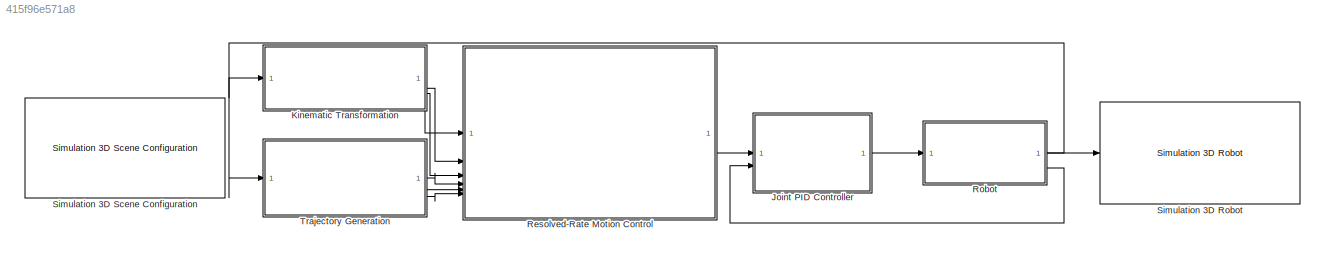
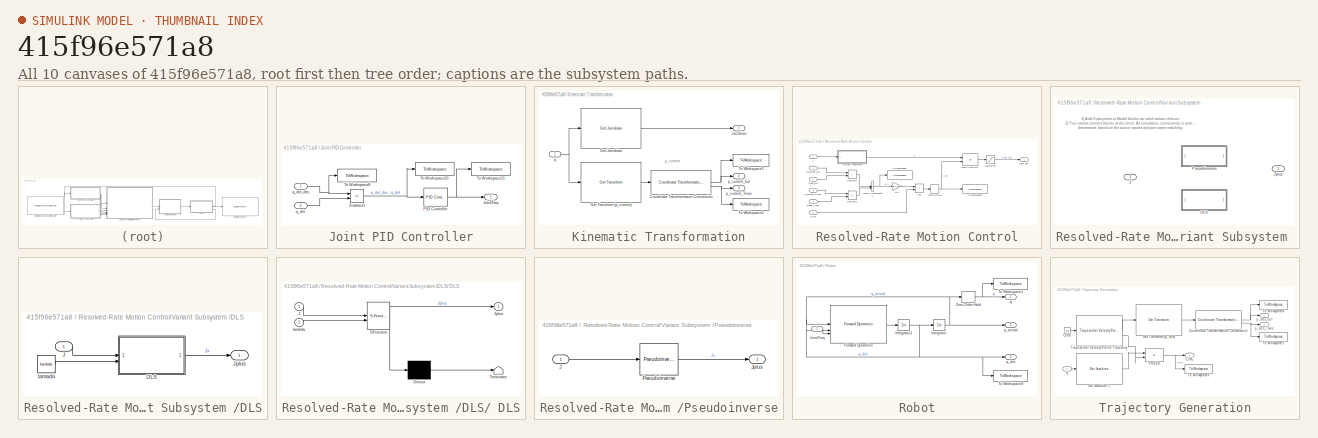
[diagram: thumbnail index - all 10 canvases of the model, root first then tree order]
MODEL slx_415f96e571a8
KIND model
CONFIG AbsTol = auto
CONFIG EnableMultiTasking = off
CONFIG FixedStep = 0.005
CONFIG MaxStep = auto
CONFIG MinStep = auto
CONFIG RelTol = 1e-3
CONFIG SampleTimeConstraint = Unconstrained
CONFIG SolverName = VariableStepAuto
CONFIG StartTime = 0.0
CONFIG StopTime = 10.0
BLOCK [SubSystem] Joint PID Controller
BLOCK [Outport] Joint PID Controller/JointTorq
BLOCK [Reference] Joint PID Controller/PID Controller   REF=slpidlib/PID Controller
  LibrarySourceBlock = simulink/Continuous/PID Controller
  SourceBlock = slpidlib/PID Controller
  SourceType = PID 1dof
BLOCK [Sum] Joint PID Controller/Subtract1
  IconShape = rectangular
  Inputs = +-
BLOCK [ToWorkspace] Joint PID Controller/To Workspace10
  FixptAsFi = on
  MaxDataPoints = inf
  SampleTime = 0.01
  SaveFormat = Structure With Time
  VariableName = sub
BLOCK [ToWorkspace] Joint PID Controller/To Workspace11
  FixptAsFi = on
  MaxDataPoints = inf
  SampleTime = 0.01
  SaveFormat = Structure With Time
  VariableName = torque
BLOCK [ToWorkspace] Joint PID Controller/To Workspace8
  FixptAsFi = on
  MaxDataPoints = inf
  SampleTime = 0.01
  SaveFormat = Structure With Time
  VariableName = q_dot_des
BLOCK [Inport] Joint PID Controller/q_dot
  NameLocation = top
  Port = 2
BLOCK [Inport] Joint PID Controller/q_dot_des
BLOCK [SubSystem] Kinematic Transformation
BLOCK [Reference] Kinematic Transformation/Coordinate Transformation Conversion  REF=robotcorelib/Coordinate Transformation Conversion
  LibrarySourceBlock = robotutilslib/Coordinate Transformation Conversion
  SourceBlock = robotcorelib/Coordinate Transformation Conversion
  SourceType = robotics.slcore.internal.block.CoordinateTransformationConversion
BLOCK [Reference] Kinematic Transformation/Get Jacobian   REF=robotmaniplib/Get Jacobian
  SourceBlock = robotmaniplib/Get Jacobian
  SourceType = Get Jacobian
BLOCK [Reference] Kinematic Transformation/Get Transform (p_current)  REF=robotmaniplib/Get Transform
  SourceBlock = robotmaniplib/Get Transform
  SourceType = Get Transform
BLOCK [Outport] Kinematic Transformation/Jacobian
BLOCK [ToWorkspace] Kinematic Transformation/To Workspace2
  FixptAsFi = on
  MaxDataPoints = inf
  SampleTime = 0.01
  SaveFormat = Structure With Time
  VariableName = p_current_Trvec
BLOCK [ToWorkspace] Kinematic Transformation/To Workspace3
  FixptAsFi = on
  MaxDataPoints = inf
  SampleTime = 0.01
  SaveFormat = Structure With Time
  VariableName = p_current_Eul
BLOCK [Outport] Kinematic Transformation/p_current_Eul
  Port = 2
BLOCK [Outport] Kinematic Transformation/p_current_Trvec
  Port = 3
BLOCK [Inport] Kinematic Transformation/q
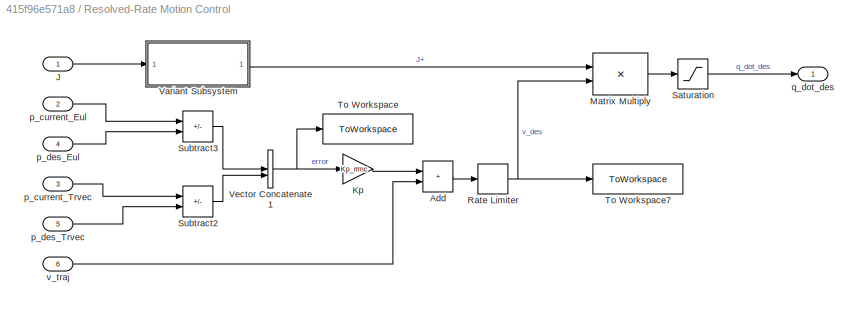
BLOCK [SubSystem] Resolved-Rate Motion Control
BLOCK [Sum] Resolved-Rate Motion Control/Add
  IconShape = rectangular
BLOCK [Inport] Resolved-Rate Motion Control/J
BLOCK [Gain] Resolved-Rate Motion Control/Kp
  Gain = Kp_rrmc
BLOCK [Product] Resolved-Rate Motion Control/Matrix Multiply
  Multiplication = Matrix(*)
BLOCK [RateLimiter] Resolved-Rate Motion Control/Rate Limiter 
  FallingSlewLimit = [-0.3; -0.3; -0.3; -0.8; -0.8; -0.8]
  RisingSlewLimit = [0.3; 0.3; 0.3; 0.8; 0.8; 0.8]
  SampleTimeMode = inherited
BLOCK [Saturate] Resolved-Rate Motion Control/Saturation 
  LowerLimit = -1.6
  UpperLimit = 1.6
BLOCK [Sum] Resolved-Rate Motion Control/Subtract2
  IconShape = rectangular
  Inputs = -+
BLOCK [Sum] Resolved-Rate Motion Control/Subtract3
  IconShape = rectangular
  Inputs = -+
BLOCK [ToWorkspace] Resolved-Rate Motion Control/To Workspace
  FixptAsFi = on
  MaxDataPoints = inf
  SampleTime = 0.01
  SaveFormat = Structure With Time
  VariableName = error
BLOCK [ToWorkspace] Resolved-Rate Motion Control/To Workspace7
  FixptAsFi = on
  MaxDataPoints = inf
  SampleTime = 0.01
  SaveFormat = Structure With Time
  VariableName = v_des
BLOCK [SubSystem] Resolved-Rate Motion Control/Variant Subsystem 
  Variant = on
BLOCK [SubSystem] Resolved-Rate Motion Control/Variant Subsystem /DLS
  VariantControl = select==1
BLOCK [SubSystem] Resolved-Rate Motion Control/Variant Subsystem /DLS/ DLS
  ErrorFcn = Stateflow.Translate.translate
  PermitHierarchicalResolution = ExplicitOnly
  SFBlockType = MATLAB Function
  TreatAsAtomicUnit = on
BLOCK [Demux] Resolved-Rate Motion Control/Variant Subsystem /DLS/ DLS/ Demux 
  Outputs = 1
BLOCK [S-Function] Resolved-Rate Motion Control/Variant Subsystem /DLS/ DLS/ SFunction 
  EnableBusSupport = on
  FunctionName = sf_sfun
  PortCounts = [2 2]
  SFcnIsStateOwnerBlock = off
  SFunctionDeploymentMode = off
  Tag = Stateflow S-Function 1
BLOCK [Terminator] Resolved-Rate Motion Control/Variant Subsystem /DLS/ DLS/ Terminator 
BLOCK [Inport] Resolved-Rate Motion Control/Variant Subsystem /DLS/ DLS/J
BLOCK [Outport] Resolved-Rate Motion Control/Variant Subsystem /DLS/ DLS/Jplus
BLOCK [Inport] Resolved-Rate Motion Control/Variant Subsystem /DLS/ DLS/lambda
  Port = 2
BLOCK [Inport] Resolved-Rate Motion Control/Variant Subsystem /DLS/J
BLOCK [Outport] Resolved-Rate Motion Control/Variant Subsystem /DLS/Jplus
BLOCK [Constant] Resolved-Rate Motion Control/Variant Subsystem /DLS/lamada
  SampleTime = 0.01
  Value = lambda
BLOCK [Inport] Resolved-Rate Motion Control/Variant Subsystem /J
BLOCK [Outport] Resolved-Rate Motion Control/Variant Subsystem /Jplus
BLOCK [SubSystem] Resolved-Rate Motion Control/Variant Subsystem /Pseudoinverse
  VariantControl = select==0
BLOCK [Inport] Resolved-Rate Motion Control/Variant Subsystem /Pseudoinverse/J
BLOCK [Outport] Resolved-Rate Motion Control/Variant Subsystem /Pseudoinverse/Jplus
BLOCK [Reference] Resolved-Rate Motion Control/Variant Subsystem /Pseudoinverse/Pseudoinverse  REF=dspinverses/Pseudoinverse
  SourceBlock = dspinverses/Pseudoinverse
  SourceType = Pseudoinverse
BLOCK [Concatenate] Resolved-Rate Motion Control/Vector Concatenate1
BLOCK [Inport] Resolved-Rate Motion Control/p_current_Eul
  Port = 2
BLOCK [Inport] Resolved-Rate Motion Control/p_current_Trvec
  Port = 3
BLOCK [Inport] Resolved-Rate Motion Control/p_des_Eul
  Port = 4
BLOCK [Inport] Resolved-Rate Motion Control/p_des_Trvec
  Port = 5
BLOCK [Outport] Resolved-Rate Motion Control/q_dot_des
BLOCK [Inport] Resolved-Rate Motion Control/v_traj
  Port = 6
BLOCK [SubSystem] Robot
BLOCK [Reference] Robot/Forward Dynamics   REF=robotmaniplib/Forward Dynamics
  SourceBlock = robotmaniplib/Forward Dynamics
  SourceType = Forward Dynamics
BLOCK [Integrator] Robot/Integrator 
  InitialCondition = [0;0;0;0;0;0]
BLOCK [Integrator] Robot/Integrator1 
  InitialCondition = [0;0;0;0;0;0]
BLOCK [Inport] Robot/JointTorq
BLOCK [ToWorkspace] Robot/To Workspace1
  FixptAsFi = on
  MaxDataPoints = inf
  SampleTime = 0.01
  SaveFormat = Structure With Time
  VariableName = q
BLOCK [ToWorkspace] Robot/To Workspace9
  FixptAsFi = on
  MaxDataPoints = inf
  SampleTime = 0.01
  SaveFormat = Structure With Time
  VariableName = q_dot
BLOCK [ZeroOrderHold] Robot/Zero-Order Hold 
  SampleTime = -1
BLOCK [Outport] Robot/q
BLOCK [Outport] Robot/q_actual
  Port = 2
BLOCK [Outport] Robot/q_dot
  Port = 3
BLOCK [Reference] Simulation 3D Robot   REF=robotsim3dlib/Simulation 3D Robot
  SourceBlock = robotsim3dlib/Simulation 3D Robot
  SourceType = Simulation 3D Robot
BLOCK [Reference] Simulation 3D Scene Configuration   REF=sim3dlib/Simulation 3D Scene Configuration
  LibrarySourceBlock = robotsim3dlib/Simulation 3D Scene Configuration
  Priority = 0
  SourceBlock = sim3dlib/Simulation 3D Scene Configuration
  SourceType = Simulation 3D Scene Configuration
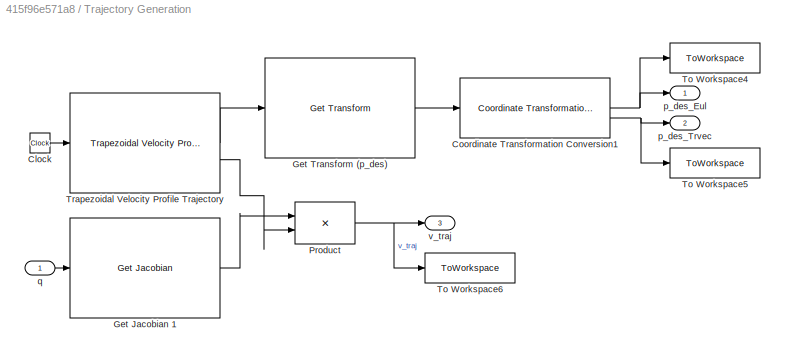
BLOCK [SubSystem] Trajectory Generation
BLOCK [Clock] Trajectory Generation/Clock 
BLOCK [Reference] Trajectory Generation/Coordinate Transformation Conversion1  REF=robotcorelib/Coordinate Transformation Conversion
  LibrarySourceBlock = robotutilslib/Coordinate Transformation Conversion
  SourceBlock = robotcorelib/Coordinate Transformation Conversion
  SourceType = robotics.slcore.internal.block.CoordinateTransformationConversion
BLOCK [Reference] Trajectory Generation/Get Jacobian 1  REF=robotmaniplib/Get Jacobian
  SourceBlock = robotmaniplib/Get Jacobian
  SourceType = Get Jacobian
BLOCK [Reference] Trajectory Generation/Get Transform (p_des)  REF=robotmaniplib/Get Transform
  SourceBlock = robotmaniplib/Get Transform
  SourceType = Get Transform
BLOCK [Product] Trajectory Generation/Product
  Multiplication = Matrix(*)
BLOCK [ToWorkspace] Trajectory Generation/To Workspace4
  FixptAsFi = on
  MaxDataPoints = inf
  SampleTime = 0.01
  SaveFormat = Structure With Time
  VariableName = p_des_Eul
BLOCK [ToWorkspace] Trajectory Generation/To Workspace5
  FixptAsFi = on
  MaxDataPoints = inf
  SampleTime = 0.01
  SaveFormat = Structure With Time
  VariableName = p_des_Trvec
BLOCK [ToWorkspace] Trajectory Generation/To Workspace6
  FixptAsFi = on
  MaxDataPoints = inf
  SampleTime = 0.01
  SaveFormat = Structure With Time
  VariableName = v_traj
BLOCK [Reference] Trajectory Generation/Trapezoidal Velocity Profile Trajectory  REF=robotcorelib/Trapezoidal Velocity Profile Trajectory
  LibrarySourceBlock = robotutilslib/Trapezoidal Velocity Profile Trajectory
  SourceBlock = robotcorelib/Trapezoidal Velocity Profile Trajectory
  SourceType = robotics.slcore.internal.block.TrapVelTrajSys
BLOCK [Outport] Trajectory Generation/p_des_Eul
BLOCK [Outport] Trajectory Generation/p_des_Trvec
  Port = 2
BLOCK [Inport] Trajectory Generation/q
BLOCK [Outport] Trajectory Generation/v_traj
  Port = 3
ANNOTATION Kinematic Transformation: p_current
ANNOTATION Resolved-Rate Motion Control/Variant Subsystem : 1) Add Subsystem or Model blocks as valid variant choices. 2) You cannot connect blocks at this level. At simulation, connectivity is automatically determined, based on the active variant and port name matching.
NET Joint PID Controller/PID Controller :1 -> Joint PID Controller/JointTorq:1, Joint PID Controller/To Workspace11:1
NET Joint PID Controller/Subtract1:1 -> Joint PID Controller/PID Controller :1, Joint PID Controller/To Workspace10:1
LINE Joint PID Controller/q_dot:1 -> Joint PID Controller/Subtract1:2
NET Joint PID Controller/q_dot_des:1 -> Joint PID Controller/Subtract1:1, Joint PID Controller/To Workspace8:1
LINE Joint PID Controller:1 -> Robot:1
NET Kinematic Transformation/Coordinate Transformation Conversion:1 -> Kinematic Transformation/To Workspace3:1, Kinematic Transformation/p_current_Eul:1
NET Kinematic Transformation/Coordinate Transformation Conversion:2 -> Kinematic Transformation/To Workspace2:1, Kinematic Transformation/p_current_Trvec:1
LINE Kinematic Transformation/Get Jacobian :1 -> Kinematic Transformation/Jacobian:1
LINE Kinematic Transformation/Get Transform (p_current):1 -> Kinematic Transformation/Coordinate Transformation Conversion:1
NET Kinematic Transformation/q:1 -> Kinematic Transformation/Get Jacobian :1, Kinematic Transformation/Get Transform (p_current):1
LINE Kinematic Transformation:1 -> Resolved-Rate Motion Control:1
LINE Kinematic Transformation:2 -> Resolved-Rate Motion Control:2
LINE Kinematic Transformation:3 -> Resolved-Rate Motion Control:3
LINE Resolved-Rate Motion Control/Add:1 -> Resolved-Rate Motion Control/Rate Limiter :1
LINE Resolved-Rate Motion Control/J:1 -> Resolved-Rate Motion Control/Variant Subsystem :1
LINE Resolved-Rate Motion Control/Kp:1 -> Resolved-Rate Motion Control/Add:1
LINE Resolved-Rate Motion Control/Matrix Multiply:1 -> Resolved-Rate Motion Control/Saturation :1
NET Resolved-Rate Motion Control/Rate Limiter :1 -> Resolved-Rate Motion Control/Matrix Multiply:2, Resolved-Rate Motion Control/To Workspace7:1
LINE Resolved-Rate Motion Control/Saturation :1 -> Resolved-Rate Motion Control/q_dot_des:1
LINE Resolved-Rate Motion Control/Subtract2:1 -> Resolved-Rate Motion Control/Vector Concatenate1:2
LINE Resolved-Rate Motion Control/Subtract3:1 -> Resolved-Rate Motion Control/Vector Concatenate1:1
LINE Resolved-Rate Motion Control/Variant Subsystem /DLS/ DLS:1 -> Resolved-Rate Motion Control/Variant Subsystem /DLS/Jplus:1
LINE Resolved-Rate Motion Control/Variant Subsystem /DLS/J:1 -> Resolved-Rate Motion Control/Variant Subsystem /DLS/ DLS:1
LINE Resolved-Rate Motion Control/Variant Subsystem /DLS/lamada:1 -> Resolved-Rate Motion Control/Variant Subsystem /DLS/ DLS:2
LINE Resolved-Rate Motion Control/Variant Subsystem /Pseudoinverse/J:1 -> Resolved-Rate Motion Control/Variant Subsystem /Pseudoinverse/Pseudoinverse:1
LINE Resolved-Rate Motion Control/Variant Subsystem /Pseudoinverse/Pseudoinverse:1 -> Resolved-Rate Motion Control/Variant Subsystem /Pseudoinverse/Jplus:1
LINE Resolved-Rate Motion Control/Variant Subsystem :1 -> Resolved-Rate Motion Control/Matrix Multiply:1
NET Resolved-Rate Motion Control/Vector Concatenate1:1 -> Resolved-Rate Motion Control/Kp:1, Resolved-Rate Motion Control/To Workspace:1
LINE Resolved-Rate Motion Control/p_current_Eul:1 -> Resolved-Rate Motion Control/Subtract3:1
LINE Resolved-Rate Motion Control/p_current_Trvec:1 -> Resolved-Rate Motion Control/Subtract2:1
LINE Resolved-Rate Motion Control/p_des_Eul:1 -> Resolved-Rate Motion Control/Subtract3:2
LINE Resolved-Rate Motion Control/p_des_Trvec:1 -> Resolved-Rate Motion Control/Subtract2:2
LINE Resolved-Rate Motion Control/v_traj:1 -> Resolved-Rate Motion Control/Add:2
LINE Resolved-Rate Motion Control:1 -> Joint PID Controller:1
LINE Robot/Forward Dynamics :1 -> Robot/Integrator1 :1
NET Robot/Integrator :1 -> Robot/Forward Dynamics :1, Robot/Zero-Order Hold :1, Robot/q_actual:1
NET Robot/Integrator1 :1 -> Robot/Forward Dynamics :2, Robot/Integrator :1, Robot/To Workspace9:1, Robot/q_dot:1
LINE Robot/JointTorq:1 -> Robot/Forward Dynamics :3
NET Robot/Zero-Order Hold :1 -> Robot/To Workspace1:1, Robot/q:1
NET Robot:1 -> Kinematic Transformation:1, Trajectory Generation:1
LINE Robot:2 -> Simulation 3D Robot :1
LINE Robot:3 -> Joint PID Controller:2
LINE Trajectory Generation/Clock :1 -> Trajectory Generation/Trapezoidal Velocity Profile Trajectory:1
NET Trajectory Generation/Coordinate Transformation Conversion1:1 -> Trajectory Generation/To Workspace4:1, Trajectory Generation/p_des_Eul:1
NET Trajectory Generation/Coordinate Transformation Conversion1:2 -> Trajectory Generation/To Workspace5:1, Trajectory Generation/p_des_Trvec:1
LINE Trajectory Generation/Get Jacobian 1:1 -> Trajectory Generation/Product:1
LINE Trajectory Generation/Get Transform (p_des):1 -> Trajectory Generation/Coordinate Transformation Conversion1:1
NET Trajectory Generation/Product:1 -> Trajectory Generation/To Workspace6:1, Trajectory Generation/v_traj:1
LINE Trajectory Generation/Trapezoidal Velocity Profile Trajectory:1 -> Trajectory Generation/Get Transform (p_des):1
LINE Trajectory Generation/Trapezoidal Velocity Profile Trajectory:2 -> Trajectory Generation/Product:2
LINE Trajectory Generation/q:1 -> Trajectory Generation/Get Jacobian 1:1
LINE Trajectory Generation:1 -> Resolved-Rate Motion Control:4
LINE Trajectory Generation:2 -> Resolved-Rate Motion Control:5
LINE Trajectory Generation:3 -> Resolved-Rate Motion Control:6
note: NET lines group one-source signal fan-out (src -> all destinations, sorted); 1:1 wires keep LINE
CHART Resolved-Rate Motion Control/Variant Subsystem /DLS/ DLS states=1 transitions=1
  STATE_LABEL 'eML_blk_kernel()'
  STATE_LABEL "SCRIPT:\nfunction Jplus = dls_pinv(J, lambda)\n    % Damped Least Squares Pseudoinverse\n    [m, n] = size(J);\n    Jplus = J' / (J*J' + lambda^2*eye(m));\nend\n"
CHART  states=0 transitions=0
